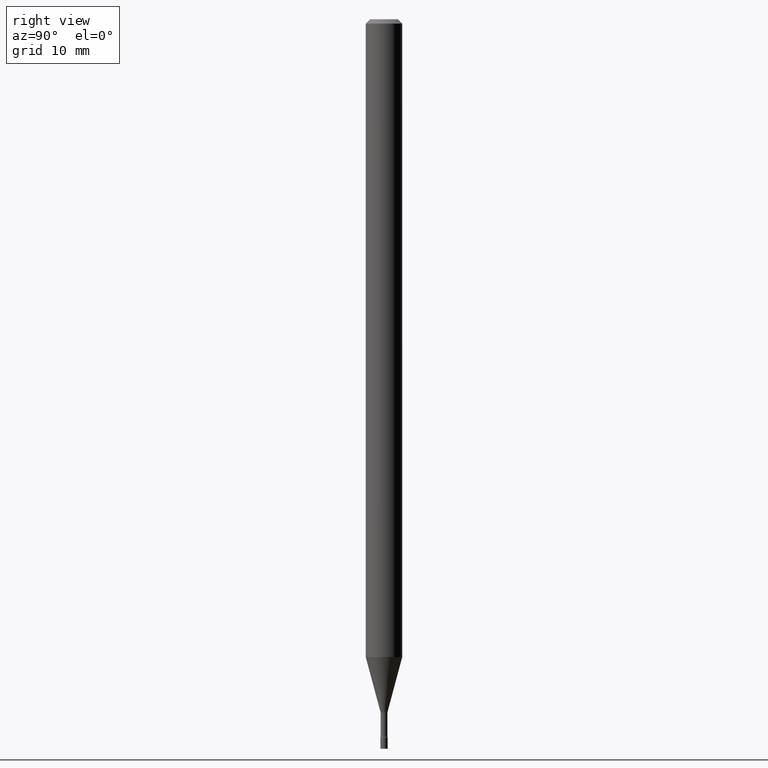
[diagram: clean part render]
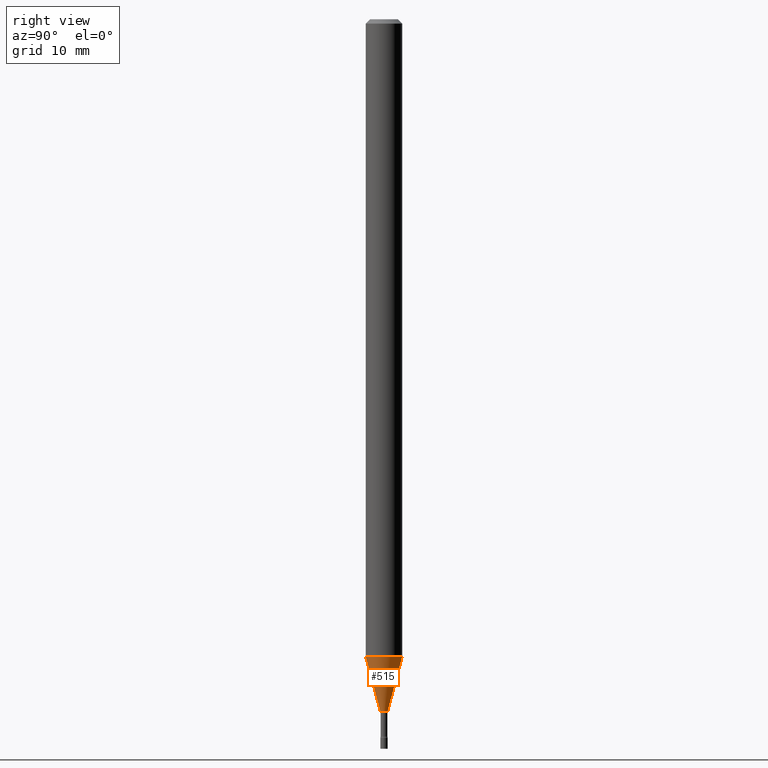
[diagram: same view with one face highlighted and labeled with its STEP entity id]
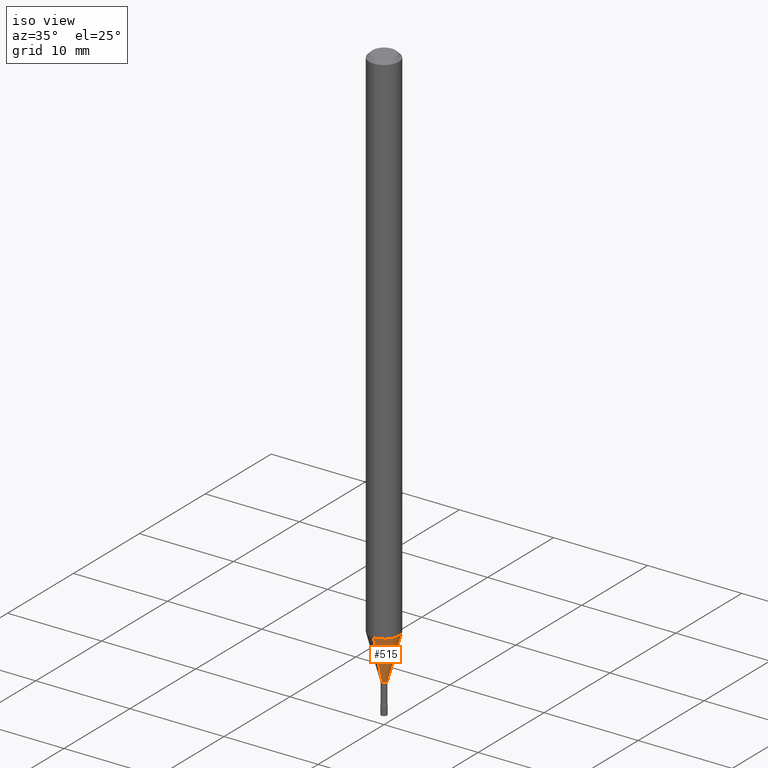
[diagram: same view with one face highlighted and labeled with its STEP entity id]
A machine part, right view. The second image highlights one B-rep face of the part: STEP entity #515.
A second angle (iso view) of the same face is appended — the face is thin or edge-on in the first view.
In plain terms, the highlighted conical surface has half-angle 15 deg.
Its self-contained STEP definition (entity closure, byte-faithful):
#4 = DIRECTION ( 'NONE',  ( -6.982962677686265922E-15, -1.000000000000000000, 4.370956789862821150E-15 ) ) ;
#16 = DIRECTION ( 'NONE',  ( -2.445407738250845561E-29, 3.491568791600821507E-15, 1.000000000000000000 ) ) ;
#30 = EDGE_CURVE ( 'NONE', #373, #230, #250, .T. ) ;
#51 = CARTESIAN_POINT ( 'NONE',  ( -4.364351673553382734E-16, -0.06250000000000764666, -2.185598421515879686 ) ) ;
#52 = VECTOR ( 'NONE', #516, 39.37007874015748143 ) ;
#57 = CARTESIAN_POINT ( 'NONE',  ( 2.656048273965428500E-16, 0.01226111260565569683, -2.373092501787273267 ) ) ;
#86 = ORIENTED_EDGE ( 'NONE', *, *, #174, .T. ) ;
#104 = CIRCLE ( 'NONE', #232, 0.01226111260566397840 ) ;
#122 = CARTESIAN_POINT ( 'NONE',  ( 4.440892098501159629E-16, 0.06249999999999236722, -2.185598421515880130 ) ) ;
#139 = CARTESIAN_POINT ( 'NONE',  ( 8.712044494296936730E-17, 0.01226111260565569336, -2.373092501787273267 ) ) ;
#174 = EDGE_CURVE ( 'NONE', #498, #416, #104, .T. ) ;
#181 = DIRECTION ( 'NONE',  ( -6.982962677686265922E-15, -1.000000000000000000, 0.000000000000000000 ) ) ;
#182 = EDGE_LOOP ( 'NONE', ( #86, #489, #385, #432 ) ) ;
#201 = CARTESIAN_POINT ( 'NONE',  ( -8.561889171220213526E-17, -0.01226111260567226517, -2.373092501787273267 ) ) ;
#202 = EDGE_CURVE ( 'NONE', #498, #373, #362, .T. ) ;
#207 = CARTESIAN_POINT ( 'NONE',  ( 5.344679292683766373E-29, -7.631167239536863918E-15, -2.185598421515880130 ) ) ;
#226 = CARTESIAN_POINT ( 'NONE',  ( -8.561889171220213526E-17, -0.01226111260567226517, -2.373092501787273267 ) ) ;
#230 = VERTEX_POINT ( 'NONE', #122 ) ;
#232 = AXIS2_PLACEMENT_3D ( 'NONE', #336, #519, #367 ) ;
#234 = CARTESIAN_POINT ( 'NONE',  ( 5.803178767455656889E-29, -8.285815718822359440E-15, -2.373092501787273267 ) ) ;
#240 = VECTOR ( 'NONE', #419, 39.37007874015748854 ) ;
#250 = CIRCLE ( 'NONE', #471, 0.06250000000000000000 ) ;
#251 = CONICAL_SURFACE ( 'NONE', #488, 0.01226111260566397840, 0.2617993877991499629 ) ;
#258 = LINE ( 'NONE', #139, #240 ) ;
#335 = DIRECTION ( 'NONE',  ( -2.445407738250845561E-29, 3.491568791600821507E-15, 1.000000000000000000 ) ) ;
#336 = CARTESIAN_POINT ( 'NONE',  ( 5.803178767455656889E-29, -8.285815718822359440E-15, -2.373092501787273267 ) ) ;
#353 = EDGE_CURVE ( 'NONE', #416, #230, #258, .T. ) ;
#362 = LINE ( 'NONE', #201, #52 ) ;
#367 = DIRECTION ( 'NONE',  ( -6.982962677686265922E-15, -1.000000000000000000, 0.000000000000000000 ) ) ;
#373 = VERTEX_POINT ( 'NONE', #51 ) ;
#385 = ORIENTED_EDGE ( 'NONE', *, *, #30, .F. ) ;
#416 = VERTEX_POINT ( 'NONE', #57 ) ;
#419 = DIRECTION ( 'NONE',  ( 1.839019923739597949E-15, 0.2588190451025246253, 0.9659258262890670910 ) ) ;
#432 = ORIENTED_EDGE ( 'NONE', *, *, #202, .F. ) ;
#468 = FACE_OUTER_BOUND ( 'NONE', #182, .T. ) ;
#471 = AXIS2_PLACEMENT_3D ( 'NONE', #207, #335, #4 ) ;
#488 = AXIS2_PLACEMENT_3D ( 'NONE', #234, #16, #181 ) ;
#489 = ORIENTED_EDGE ( 'NONE', *, *, #353, .T. ) ;
#498 = VERTEX_POINT ( 'NONE', #226 ) ;
#515 = ADVANCED_FACE ( 'NONE', ( #468 ), #251, .T. ) ;
#516 = DIRECTION ( 'NONE',  ( -1.807323732225328167E-15, -0.2588190451025179084, 0.9659258262890690894 ) ) ;
#519 = DIRECTION ( 'NONE',  ( -2.445407738250845561E-29, 3.491568791600821507E-15, 1.000000000000000000 ) ) ;